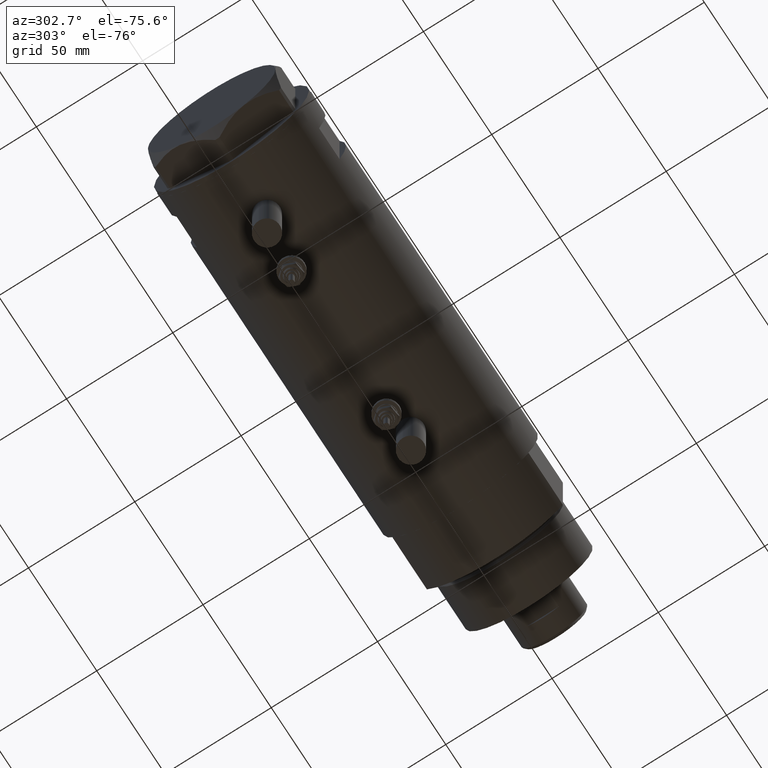
[diagram: clean part render]
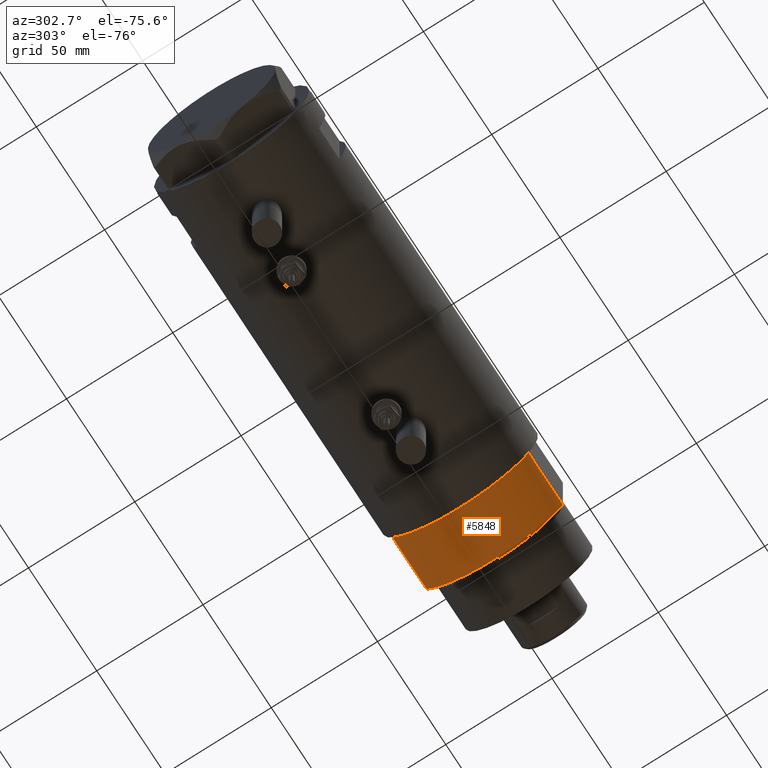
[diagram: same view with one face highlighted and labeled with its STEP entity id]
A machine part, auxiliary view. The second image highlights one B-rep face of the part: STEP entity #5848.
In plain terms, the highlighted cylindrical surface (partial cylindrical patch) has radius 36.5 mm, axis along (-1, -0, 0).
Its self-contained STEP definition (entity closure, byte-faithful):
#158 = ORIENTED_EDGE ( 'NONE', *, *, #4870, .F. ) ;
#165 = CYLINDRICAL_SURFACE ( 'NONE', #3859, 36.50000000000000000 ) ;
#248 = AXIS2_PLACEMENT_3D ( 'NONE', #1728, #3107, #3523 ) ;
#506 = CARTESIAN_POINT ( 'NONE',  ( 17.55704986607943496, 32.00000000000000000, 0.000000000000000000 ) ) ;
#533 = DIRECTION ( 'NONE',  ( 1.000000000000000000, 0.000000000000000000, 0.000000000000000000 ) ) ;
#640 = VECTOR ( 'NONE', #4392, 1000.000000000000000 ) ;
#732 = CIRCLE ( 'NONE', #248, 36.50000000000000000 ) ;
#1250 = VERTEX_POINT ( 'NONE', #5185 ) ;
#1427 = CARTESIAN_POINT ( 'NONE',  ( 17.55704986607943141, -32.00000000000000000, 0.000000000000000000 ) ) ;
#1726 = ORIENTED_EDGE ( 'NONE', *, *, #2090, .F. ) ;
#1728 = CARTESIAN_POINT ( 'NONE',  ( 0.000000000000000000, 0.000000000000000000, 25.19999999999999929 ) ) ;
#1916 = CARTESIAN_POINT ( 'NONE',  ( 17.55704986607943141, 32.00000000000000000, 0.000000000000000000 ) ) ;
#2090 = EDGE_CURVE ( 'NONE', #3151, #5199, #3661, .T. ) ;
#2999 = AXIS2_PLACEMENT_3D ( 'NONE', #3156, #5021, #533 ) ;
#3107 = DIRECTION ( 'NONE',  ( 0.000000000000000000, 0.000000000000000000, 1.000000000000000000 ) ) ;
#3151 = VERTEX_POINT ( 'NONE', #5490 ) ;
#3156 = CARTESIAN_POINT ( 'NONE',  ( 0.000000000000000000, 0.000000000000000000, 0.000000000000000000 ) ) ;
#3307 = EDGE_LOOP ( 'NONE', ( #158, #1726, #4497, #5467 ) ) ;
#3340 = DIRECTION ( 'NONE',  ( -1.000000000000000000, 0.000000000000000000, 0.000000000000000000 ) ) ;
#3373 = FACE_OUTER_BOUND ( 'NONE', #3307, .T. ) ;
#3377 = LINE ( 'NONE', #1916, #5802 ) ;
#3405 = EDGE_CURVE ( 'NONE', #4929, #1250, #3377, .T. ) ;
#3468 = CIRCLE ( 'NONE', #2999, 36.50000000000000000 ) ;
#3523 = DIRECTION ( 'NONE',  ( 1.000000000000000000, 0.000000000000000000, 0.000000000000000000 ) ) ;
#3543 = CARTESIAN_POINT ( 'NONE',  ( 17.55704986607943496, -32.00000000000000000, 25.19999999999999929 ) ) ;
#3661 = LINE ( 'NONE', #1427, #640 ) ;
#3859 = AXIS2_PLACEMENT_3D ( 'NONE', #5158, #4231, #3340 ) ;
#4231 = DIRECTION ( 'NONE',  ( -0.000000000000000000, -0.000000000000000000, -1.000000000000000000 ) ) ;
#4392 = DIRECTION ( 'NONE',  ( -0.000000000000000000, -0.000000000000000000, 1.000000000000000000 ) ) ;
#4497 = ORIENTED_EDGE ( 'NONE', *, *, #5251, .T. ) ;
#4790 = DIRECTION ( 'NONE',  ( -0.000000000000000000, -0.000000000000000000, 1.000000000000000000 ) ) ;
#4870 = EDGE_CURVE ( 'NONE', #5199, #1250, #732, .T. ) ;
#4929 = VERTEX_POINT ( 'NONE', #506 ) ;
#5021 = DIRECTION ( 'NONE',  ( 0.000000000000000000, 0.000000000000000000, 1.000000000000000000 ) ) ;
#5158 = CARTESIAN_POINT ( 'NONE',  ( 0.000000000000000000, 0.000000000000000000, 25.19999999999999929 ) ) ;
#5185 = CARTESIAN_POINT ( 'NONE',  ( 17.55704986607943496, 32.00000000000000000, 25.19999999999999929 ) ) ;
#5199 = VERTEX_POINT ( 'NONE', #3543 ) ;
#5251 = EDGE_CURVE ( 'NONE', #3151, #4929, #3468, .T. ) ;
#5467 = ORIENTED_EDGE ( 'NONE', *, *, #3405, .T. ) ;
#5490 = CARTESIAN_POINT ( 'NONE',  ( 17.55704986607943141, -32.00000000000000000, 0.000000000000000000 ) ) ;
#5802 = VECTOR ( 'NONE', #4790, 1000.000000000000000 ) ;
#5848 = ADVANCED_FACE ( 'NONE', ( #3373 ), #165, .T. ) ;